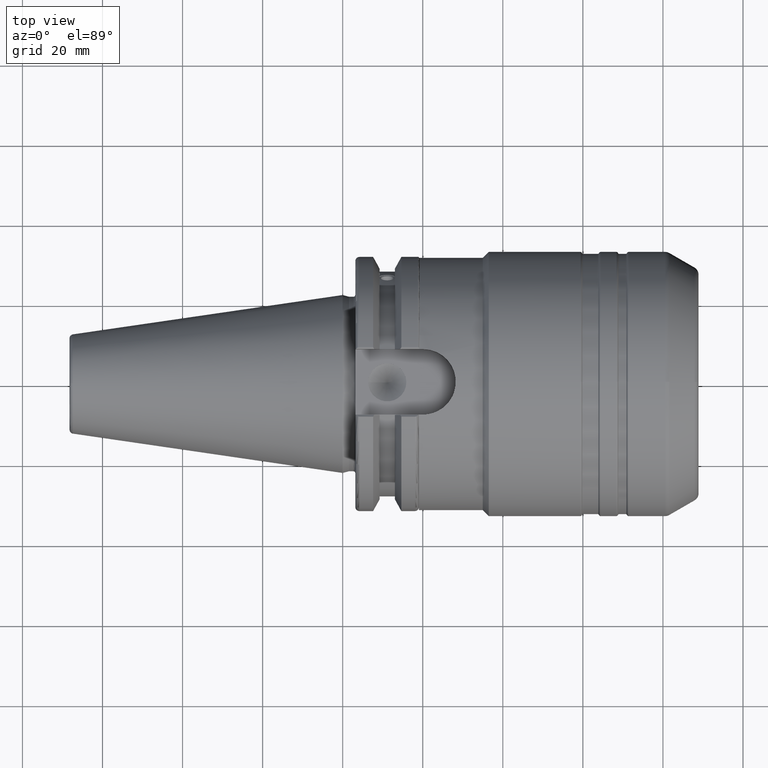
[diagram: clean part render]
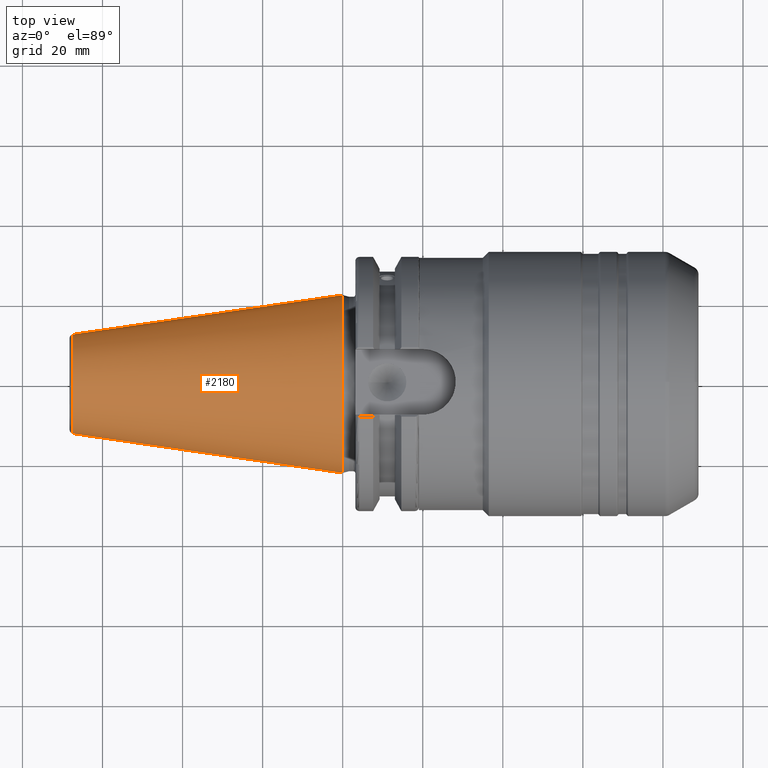
[diagram: same view with one face highlighted and labeled with its STEP entity id]
A machine part, top view. The second image highlights one B-rep face of the part: STEP entity #2180.
In plain terms, the highlighted conical surface has half-angle 8.297 deg.
Its self-contained STEP definition (entity closure, byte-faithful):
#268=FACE_OUTER_BOUND('',#389,.T.);
#389=EDGE_LOOP('',(#1948,#1949,#1950,#1951,#1952,#1953,#1954));
#508=LINE('',#4218,#612);
#612=VECTOR('',#3150,17.2484375);
#777=CIRCLE('',#2478,12.3966635780937);
#778=CIRCLE('',#2479,12.3966635780937);
#782=CIRCLE('',#2483,12.3966635780937);
#785=CIRCLE('',#2488,22.225);
#786=CIRCLE('',#2489,22.225);
#1027=VERTEX_POINT('',#4197);
#1028=VERTEX_POINT('',#4198);
#1029=VERTEX_POINT('',#4200);
#1034=VERTEX_POINT('',#4214);
#1035=VERTEX_POINT('',#4215);
#1351=EDGE_CURVE('',#1027,#1028,#777,.T.);
#1352=EDGE_CURVE('',#1028,#1029,#778,.T.);
#1356=EDGE_CURVE('',#1029,#1027,#782,.T.);
#1359=EDGE_CURVE('',#1034,#1035,#785,.T.);
#1360=EDGE_CURVE('',#1035,#1034,#786,.T.);
#1361=EDGE_CURVE('',#1035,#1028,#508,.T.);
#1948=ORIENTED_EDGE('',*,*,#1359,.F.);
#1949=ORIENTED_EDGE('',*,*,#1360,.F.);
#1950=ORIENTED_EDGE('',*,*,#1361,.T.);
#1951=ORIENTED_EDGE('',*,*,#1351,.F.);
#1952=ORIENTED_EDGE('',*,*,#1356,.F.);
#1953=ORIENTED_EDGE('',*,*,#1352,.F.);
#1954=ORIENTED_EDGE('',*,*,#1361,.F.);
#2092=CONICAL_SURFACE('',#2487,17.2484375,0.144812498238939);
#2180=ADVANCED_FACE('',(#268),#2092,.T.);
#2478=AXIS2_PLACEMENT_3D('',#4199,#3126,#3127);
#2479=AXIS2_PLACEMENT_3D('',#4201,#3128,#3129);
#2483=AXIS2_PLACEMENT_3D('',#4207,#3136,#3137);
#2487=AXIS2_PLACEMENT_3D('',#4213,#3144,#3145);
#2488=AXIS2_PLACEMENT_3D('',#4216,#3146,#3147);
#2489=AXIS2_PLACEMENT_3D('',#4217,#3148,#3149);
#3126=DIRECTION('center_axis',(-1.,0.,0.));
#3127=DIRECTION('ref_axis',(0.,-1.,3.06161699786838E-17));
#3128=DIRECTION('center_axis',(-1.,0.,0.));
#3129=DIRECTION('ref_axis',(0.,-1.,3.06161699786838E-17));
#3136=DIRECTION('center_axis',(-1.,0.,0.));
#3137=DIRECTION('ref_axis',(0.,-1.,3.06161699786838E-17));
#3144=DIRECTION('center_axis',(1.,0.,0.));
#3145=DIRECTION('ref_axis',(0.,1.,0.));
#3146=DIRECTION('center_axis',(1.,0.,0.));
#3147=DIRECTION('ref_axis',(0.,0.,-1.));
#3148=DIRECTION('center_axis',(1.,0.,0.));
#3149=DIRECTION('ref_axis',(0.,0.,-1.));
#3150=DIRECTION('',(-0.989532981063282,0.144306893071729,1.76724974695192E-17));
#4197=CARTESIAN_POINT('',(-67.3943068930717,12.3966635780937,-3.79538359275475E-15));
#4198=CARTESIAN_POINT('',(-67.3943068930718,-12.3966635780937,-1.5181534371019E-15));
#4199=CARTESIAN_POINT('Origin',(-67.3943068930717,0.,-1.89769179637738E-15));
#4200=CARTESIAN_POINT('',(-67.3943068930717,-1.5181534371019E-15,12.3966635780937));
#4201=CARTESIAN_POINT('Origin',(-67.3943068930717,0.,-1.89769179637738E-15));
#4207=CARTESIAN_POINT('Origin',(-67.3943068930717,0.,-1.89769179637738E-15));
#4213=CARTESIAN_POINT('Origin',(-34.125,0.,0.));
#4214=CARTESIAN_POINT('',(0.,22.225,0.));
#4215=CARTESIAN_POINT('',(0.,-22.225,-2.72177751110499E-15));
#4216=CARTESIAN_POINT('Origin',(0.,0.,0.));
#4217=CARTESIAN_POINT('Origin',(0.,0.,0.));
#4218=CARTESIAN_POINT('',(-34.125,-17.2484375,-2.11232437746682E-15));